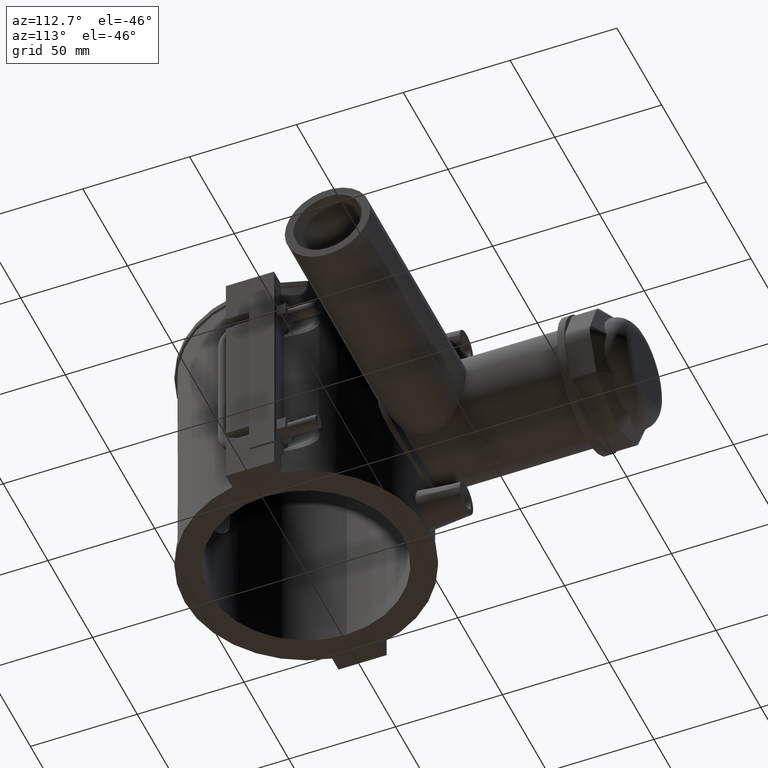
[diagram: clean part render]
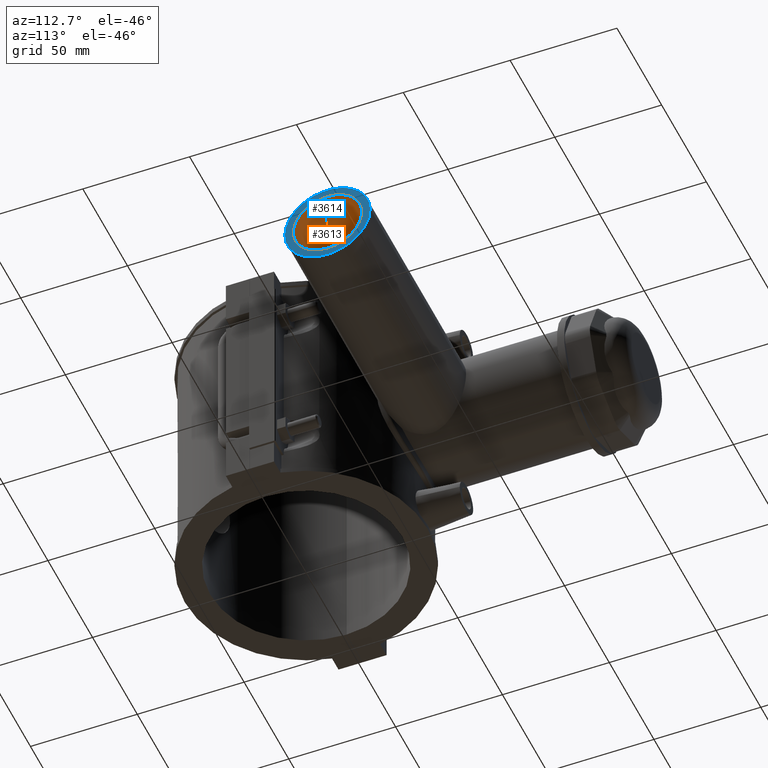
[diagram: same view with the hole feature highlighted: cylindrical wall and planar end face, labeled with their STEP entity ids]
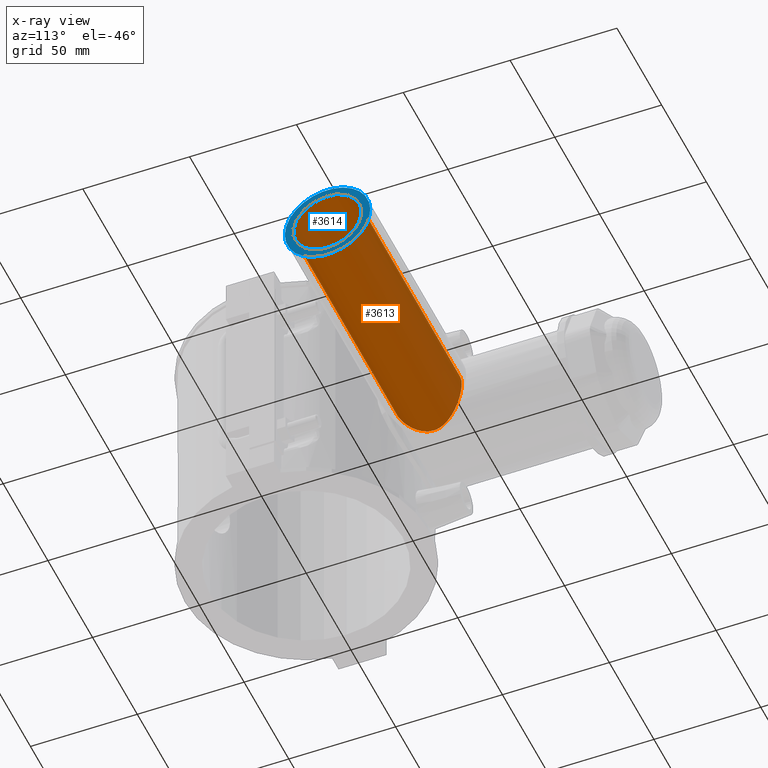
[diagram: x-ray of the same camera — body ghosted, the hole faces saturated]
A machine part, auxiliary view. The highlighted faces form one hole feature of diameter 32 mm: the cylindrical wall (entity #3613, orange) and its adjacent planar end face (entity #3614, blue) — they share a circular edge in the B-rep.
The next image is the same camera in x-ray (body ghosted, the hole faces saturated) — the bore reads through the body.
Wall:
#784=CIRCLE('',#3842,16.);
#908=FACE_BOUND('',#1187,.T.);
#959=FACE_OUTER_BOUND('',#1186,.T.);
#1186=EDGE_LOOP('',(#2475));
#1187=EDGE_LOOP('',(#2476));
#1456=B_SPLINE_CURVE_WITH_KNOTS('',3,(#5185,#5186,#5187,#5188,#5189,#5190,
#5191,#5192,#5193,#5194,#5195,#5196,#5197,#5198,#5199,#5200,#5201,#5202,
#5203,#5204,#5205,#5206,#5207,#5208,#5209,#5210,#5211,#5212,#5213,#5214,
#5215,#5216,#5217,#5218,#5219,#5220,#5221,#5222,#5223,#5224,#5225,#5226,
#5227,#5228,#5229,#5230,#5231,#5232,#5233,#5234,#5235,#5236,#5237,#5238,
#5239,#5240,#5241,#5242),.UNSPECIFIED.,.T.,.F.,(4,2,2,2,2,2,2,2,2,2,2,2,
2,2,2,2,2,2,2,2,2,2,2,2,2,2,2,2,4),(0.,0.320047934537844,0.640095869075687,
1.28019173815137,1.59466720083834,1.9091426635253,2.22361812621227,2.53809358889923,
2.8525690515862,3.16704451427316,3.48151997696013,3.79599543964709,4.43609130872278,
4.75613924326063,5.07618717779847,5.39623511233631,5.71628304687416,6.35637891594984,
6.67085437863681,6.98532984132377,7.29980530401074,7.6142807666977,7.92875622938467,
8.24323169207163,8.5577071547586,8.87218261744556,9.51227848652125,9.83232642105909,
10.1523743555969),.UNSPECIFIED.);
#1571=VERTEX_POINT('',#5184);
#1583=VERTEX_POINT('',#5367);
#1925=EDGE_CURVE('',#1571,#1571,#1456,.T.);
#1937=EDGE_CURVE('',#1583,#1583,#784,.T.);
#2475=ORIENTED_EDGE('',*,*,#1925,.T.);
#2476=ORIENTED_EDGE('',*,*,#1937,.T.);
#3557=CYLINDRICAL_SURFACE('',#3841,16.);
#3613=ADVANCED_FACE('',(#959,#908),#3557,.F.);
#3841=AXIS2_PLACEMENT_3D('',#5366,#4174,#4175);
#3842=AXIS2_PLACEMENT_3D('',#5368,#4176,#4177);
#4174=DIRECTION('center_axis',(1.,0.,0.));
#4175=DIRECTION('ref_axis',(0.,1.,0.));
#4176=DIRECTION('center_axis',(1.,0.,0.));
#4177=DIRECTION('ref_axis',(0.,0.,-1.));
#5184=CARTESIAN_POINT('',(15.1724256465471,66.,-16.));
#5185=CARTESIAN_POINT('Ctrl Pts',(15.1724256465471,66.,-16.));
#5186=CARTESIAN_POINT('Ctrl Pts',(15.1724256465471,64.9331735515405,-16.));
#5187=CARTESIAN_POINT('Ctrl Pts',(15.2884396495441,63.8578609463259,-15.8920874574322));
#5188=CARTESIAN_POINT('Ctrl Pts',(15.7205509989841,61.7587621228864,-15.4647698302408));
#5189=CARTESIAN_POINT('Ctrl Pts',(16.0349181472436,60.7345663283588,-15.1456289768249));
#5190=CARTESIAN_POINT('Ctrl Pts',(17.1440940046626,57.8175449368577,-13.9106827788027));
#5191=CARTESIAN_POINT('Ctrl Pts',(18.0955209065131,56.0759646873055,-12.703381685275));
#5192=CARTESIAN_POINT('Ctrl Pts',(19.3343651844589,54.0035529623751,-10.6309699603447));
#5193=CARTESIAN_POINT('Ctrl Pts',(19.7467868715262,53.3538810451297,-9.85588554157062));
#5194=CARTESIAN_POINT('Ctrl Pts',(20.5092047321472,52.1936169939021,-8.15147795242751));
#5195=CARTESIAN_POINT('Ctrl Pts',(20.8588331772585,51.6829715601427,-7.22202659541223));
#5196=CARTESIAN_POINT('Ctrl Pts',(21.4378154499071,50.8518543339754,-5.26010122439841));
#5197=CARTESIAN_POINT('Ctrl Pts',(21.667491481401,50.5306876702157,-4.22545221441091));
#5198=CARTESIAN_POINT('Ctrl Pts',(21.9736684846373,50.1046691279026,-2.11955817318154));
#5199=CARTESIAN_POINT('Ctrl Pts',(22.05,50.,-1.04825154228989));
#5200=CARTESIAN_POINT('Ctrl Pts',(22.05,50.,1.04825154228988));
#5201=CARTESIAN_POINT('Ctrl Pts',(21.9736684846373,50.1046691279026,2.11955817318153));
#5202=CARTESIAN_POINT('Ctrl Pts',(21.667491481401,50.5306876702157,4.2254522144109));
#5203=CARTESIAN_POINT('Ctrl Pts',(21.4378154499072,50.8518543339754,5.26010122439841));
#5204=CARTESIAN_POINT('Ctrl Pts',(20.8588331772586,51.6829715601427,7.22202659541222));
#5205=CARTESIAN_POINT('Ctrl Pts',(20.5092047321472,52.1936169939021,8.15147795242749));
#5206=CARTESIAN_POINT('Ctrl Pts',(19.7467868715262,53.3538810451297,9.85588554157061));
#5207=CARTESIAN_POINT('Ctrl Pts',(19.334365184459,54.0035529623751,10.6309699603446));
#5208=CARTESIAN_POINT('Ctrl Pts',(18.0955209065132,56.0759646873055,12.703381685275));
#5209=CARTESIAN_POINT('Ctrl Pts',(17.1440940046626,57.8175449368577,13.9106827788027));
#5210=CARTESIAN_POINT('Ctrl Pts',(16.0349181472436,60.7345663283588,15.1456289768249));
#5211=CARTESIAN_POINT('Ctrl Pts',(15.7205509989841,61.7587621228864,15.4647698302408));
#5212=CARTESIAN_POINT('Ctrl Pts',(15.2884396495442,63.8578609463259,15.8920874574322));
#5213=CARTESIAN_POINT('Ctrl Pts',(15.1724256465471,64.9331735515405,16.));
#5214=CARTESIAN_POINT('Ctrl Pts',(15.1724256465471,67.0668264484595,16.));
#5215=CARTESIAN_POINT('Ctrl Pts',(15.2884396495442,68.1421390536741,15.8920874574322));
#5216=CARTESIAN_POINT('Ctrl Pts',(15.7205509989841,70.2412378771136,15.4647698302408));
#5217=CARTESIAN_POINT('Ctrl Pts',(16.0349181472436,71.2654336716412,15.1456289768249));
#5218=CARTESIAN_POINT('Ctrl Pts',(17.1440940046626,74.1824550631423,13.9106827788027));
#5219=CARTESIAN_POINT('Ctrl Pts',(18.0955209065132,75.9240353126945,12.703381685275));
#5220=CARTESIAN_POINT('Ctrl Pts',(19.334365184459,77.9964470376249,10.6309699603446));
#5221=CARTESIAN_POINT('Ctrl Pts',(19.7467868715262,78.6461189548703,9.85588554157061));
#5222=CARTESIAN_POINT('Ctrl Pts',(20.5092047321472,79.8063830060979,8.15147795242749));
#5223=CARTESIAN_POINT('Ctrl Pts',(20.8588331772586,80.3170284398573,7.22202659541222));
#5224=CARTESIAN_POINT('Ctrl Pts',(21.4378154499072,81.1481456660246,5.26010122439841));
#5225=CARTESIAN_POINT('Ctrl Pts',(21.667491481401,81.4693123297843,4.2254522144109));
#5226=CARTESIAN_POINT('Ctrl Pts',(21.9736684846373,81.8953308720974,2.11955817318154));
#5227=CARTESIAN_POINT('Ctrl Pts',(22.05,82.,1.04825154228989));
#5228=CARTESIAN_POINT('Ctrl Pts',(22.05,82.,-1.04825154228988));
#5229=CARTESIAN_POINT('Ctrl Pts',(21.9736684846373,81.8953308720974,-2.11955817318153));
#5230=CARTESIAN_POINT('Ctrl Pts',(21.667491481401,81.4693123297843,-4.2254522144109));
#5231=CARTESIAN_POINT('Ctrl Pts',(21.4378154499071,81.1481456660246,-5.26010122439841));
#5232=CARTESIAN_POINT('Ctrl Pts',(20.8588331772585,80.3170284398573,-7.22202659541223));
#5233=CARTESIAN_POINT('Ctrl Pts',(20.5092047321472,79.8063830060979,-8.15147795242749));
#5234=CARTESIAN_POINT('Ctrl Pts',(19.7467868715262,78.6461189548703,-9.85588554157061));
#5235=CARTESIAN_POINT('Ctrl Pts',(19.3343651844589,77.9964470376249,-10.6309699603446));
#5236=CARTESIAN_POINT('Ctrl Pts',(18.0955209065131,75.9240353126945,-12.703381685275));
#5237=CARTESIAN_POINT('Ctrl Pts',(17.1440940046626,74.1824550631423,-13.9106827788027));
#5238=CARTESIAN_POINT('Ctrl Pts',(16.0349181472436,71.2654336716412,-15.1456289768249));
#5239=CARTESIAN_POINT('Ctrl Pts',(15.7205509989841,70.2412378771136,-15.4647698302408));
#5240=CARTESIAN_POINT('Ctrl Pts',(15.2884396495441,68.1421390536741,-15.8920874574322));
#5241=CARTESIAN_POINT('Ctrl Pts',(15.172425646547,67.0668264484595,-16.));
#5242=CARTESIAN_POINT('Ctrl Pts',(15.172425646547,66.,-16.));
#5366=CARTESIAN_POINT('Origin',(67.,66.,0.));
#5367=CARTESIAN_POINT('',(134.,66.,-16.));
#5368=CARTESIAN_POINT('Origin',(134.,66.,0.));
End face:
#658=PLANE('',#3843);
#783=CIRCLE('',#3840,20.);
#784=CIRCLE('',#3842,16.);
#909=FACE_BOUND('',#1189,.T.);
#960=FACE_OUTER_BOUND('',#1188,.T.);
#1188=EDGE_LOOP('',(#2477));
#1189=EDGE_LOOP('',(#2478));
#1582=VERTEX_POINT('',#5364);
#1583=VERTEX_POINT('',#5367);
#1936=EDGE_CURVE('',#1582,#1582,#783,.T.);
#1937=EDGE_CURVE('',#1583,#1583,#784,.T.);
#2477=ORIENTED_EDGE('',*,*,#1936,.T.);
#2478=ORIENTED_EDGE('',*,*,#1937,.F.);
#3614=ADVANCED_FACE('',(#960,#909),#658,.T.);
#3840=AXIS2_PLACEMENT_3D('',#5365,#4172,#4173);
#3842=AXIS2_PLACEMENT_3D('',#5368,#4176,#4177);
#3843=AXIS2_PLACEMENT_3D('',#5369,#4178,#4179);
#4172=DIRECTION('center_axis',(1.,0.,0.));
#4173=DIRECTION('ref_axis',(0.,0.,-1.));
#4176=DIRECTION('center_axis',(1.,0.,0.));
#4177=DIRECTION('ref_axis',(0.,0.,-1.));
#4178=DIRECTION('center_axis',(1.,0.,0.));
#4179=DIRECTION('ref_axis',(0.,0.,-1.));
#5364=CARTESIAN_POINT('',(134.,86.,0.));
#5365=CARTESIAN_POINT('Origin',(134.,66.,0.));
#5367=CARTESIAN_POINT('',(134.,66.,-16.));
#5368=CARTESIAN_POINT('Origin',(134.,66.,0.));
#5369=CARTESIAN_POINT('Origin',(134.,82.,0.));